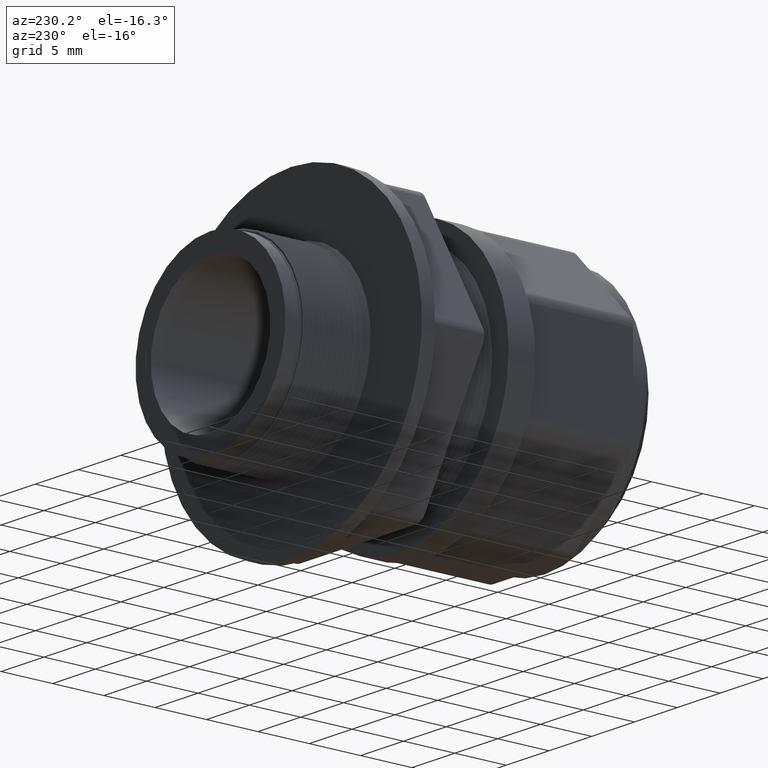
[diagram: clean part render]
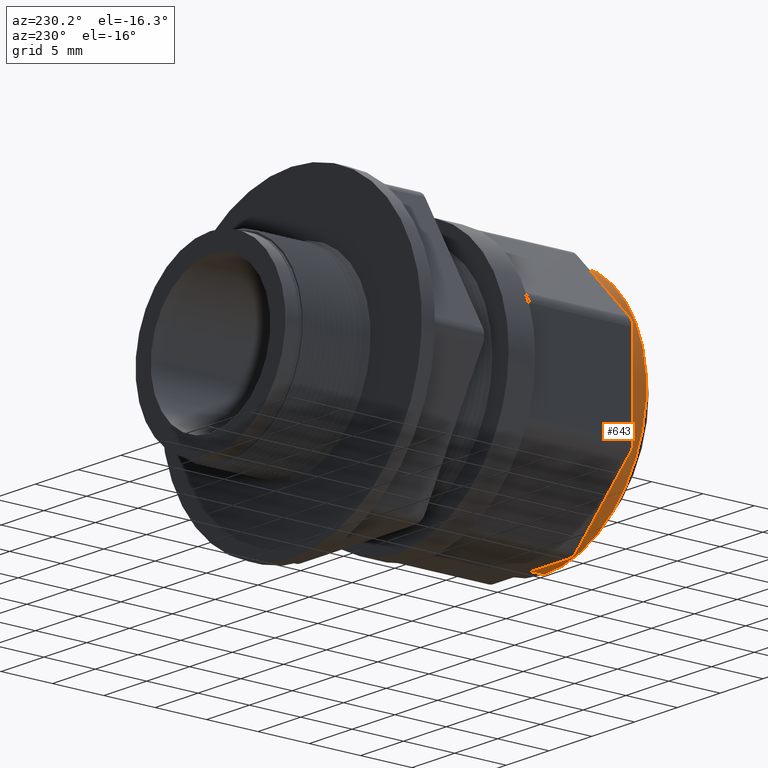
[diagram: same view with one face highlighted and labeled with its STEP entity id]
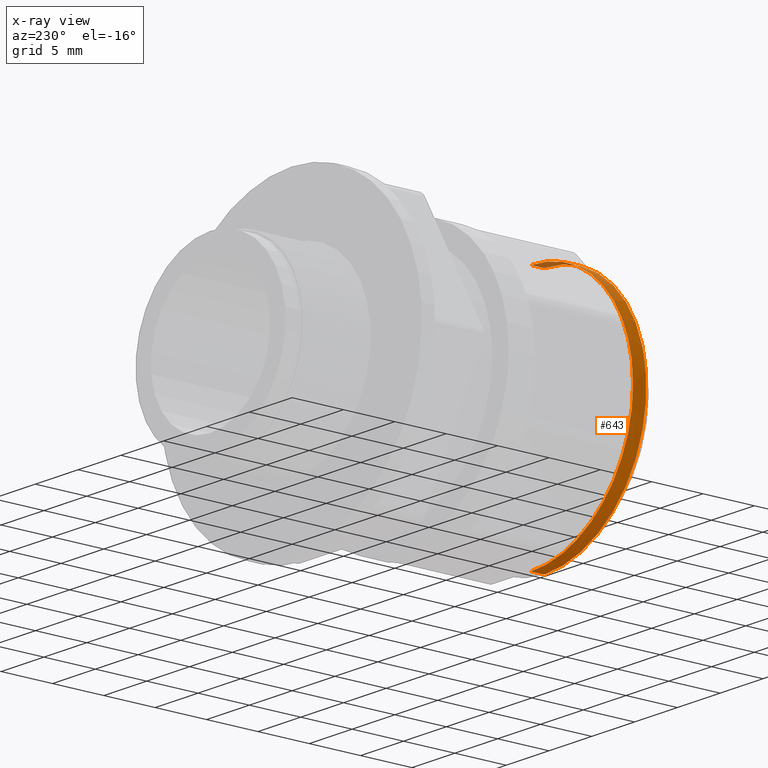
[diagram: x-ray of the same camera — body ghosted, the highlighted face saturated]
A machine part, auxiliary view. The second image highlights one B-rep face of the part: STEP entity #643.
The next image is the same camera in x-ray: the body ghosted, the highlighted face saturated — about 3% of this face is hidden behind the body in this view.
In plain terms, the highlighted cylindrical surface (partial cylindrical patch) has radius 11.938 mm, axis along (0, 1, 0).
Its self-contained STEP definition (entity closure, byte-faithful):
#464 = EDGE_CURVE ( 'NONE', #1104, #473, #2823, .T. ) ;
#473 = VERTEX_POINT ( 'NONE', #2843 ) ;
#576 = EDGE_CURVE ( 'NONE', #1101, #1109, #3183, .T. ) ;
#626 = EDGE_CURVE ( 'NONE', #1006, #1141, #3380, .T. ) ;
#629 = ORIENTED_EDGE ( 'NONE', *, *, #959, .F. ) ;
#631 = ORIENTED_EDGE ( 'NONE', *, *, #464, .F. ) ;
#632 = ORIENTED_EDGE ( 'NONE', *, *, #1161, .T. ) ;
#633 = ORIENTED_EDGE ( 'NONE', *, *, #626, .F. ) ;
#634 = ORIENTED_EDGE ( 'NONE', *, *, #997, .F. ) ;
#636 = ORIENTED_EDGE ( 'NONE', *, *, #1103, .F. ) ;
#637 = ORIENTED_EDGE ( 'NONE', *, *, #576, .T. ) ;
#640 = EDGE_LOOP ( 'NONE', ( #636, #637, #632, #633, #634, #629, #631 ) ) ;
#643 = ADVANCED_FACE ( 'NONE', ( #3401 ), #3436, .T. ) ;
#959 = EDGE_CURVE ( 'NONE', #473, #1021, #4690, .T. ) ;
#997 = EDGE_CURVE ( 'NONE', #1021, #1006, #4803, .T. ) ;
#1006 = VERTEX_POINT ( 'NONE', #4825 ) ;
#1021 = VERTEX_POINT ( 'NONE', #4877 ) ;
#1101 = VERTEX_POINT ( 'NONE', #5125 ) ;
#1103 = EDGE_CURVE ( 'NONE', #1101, #1104, #5177, .T. ) ;
#1104 = VERTEX_POINT ( 'NONE', #5173 ) ;
#1109 = VERTEX_POINT ( 'NONE', #5202 ) ;
#1141 = VERTEX_POINT ( 'NONE', #5274 ) ;
#1161 = EDGE_CURVE ( 'NONE', #1109, #1141, #5344, .T. ) ;
#2819 = DIRECTION ( 'NONE',  ( 0.0000000000000000000, 0.0000000000000000000, 1.000000000000000000 ) ) ;
#2820 = DIRECTION ( 'NONE',  ( 0.0000000000000000000, 1.000000000000000000, 0.0000000000000000000 ) ) ;
#2821 = CARTESIAN_POINT ( 'NONE',  ( 0.0000000000000000000, 0.1020000000000001700, 0.0000000000000000000 ) ) ;
#2822 = AXIS2_PLACEMENT_3D ( 'NONE', #2821, #2820, #2819 ) ;
#2823 = CIRCLE ( 'NONE', #2822, 0.4699999999999997500 ) ;
#2843 = CARTESIAN_POINT ( 'NONE',  ( -0.3323401871576771600, 0.1020000000000001700, -0.3323401871576773200 ) ) ;
#3179 = DIRECTION ( 'NONE',  ( 0.0000000000000000000, 0.0000000000000000000, 1.000000000000000000 ) ) ;
#3180 = DIRECTION ( 'NONE',  ( 0.0000000000000000000, 1.000000000000000000, 0.0000000000000000000 ) ) ;
#3181 = CARTESIAN_POINT ( 'NONE',  ( 0.0000000000000000000, 0.05100000000000008700, 0.0000000000000000000 ) ) ;
#3182 = AXIS2_PLACEMENT_3D ( 'NONE', #3181, #3180, #3179 ) ;
#3183 = CIRCLE ( 'NONE', #3182, 0.4699999999999997500 ) ;
#3376 = DIRECTION ( 'NONE',  ( 0.0000000000000000000, 0.0000000000000000000, 1.000000000000000000 ) ) ;
#3377 = DIRECTION ( 'NONE',  ( 0.0000000000000000000, 1.000000000000000000, 0.0000000000000000000 ) ) ;
#3378 = CARTESIAN_POINT ( 'NONE',  ( 0.0000000000000000000, 0.1020000000000001700, 0.0000000000000000000 ) ) ;
#3379 = AXIS2_PLACEMENT_3D ( 'NONE', #3378, #3377, #3376 ) ;
#3380 = CIRCLE ( 'NONE', #3379, 0.4699999999999997500 ) ;
#3401 = FACE_OUTER_BOUND ( 'NONE', #640, .T. ) ;
#3433 = DIRECTION ( 'NONE',  ( 0.0000000000000000000, 0.0000000000000000000, 1.000000000000000000 ) ) ;
#3434 = DIRECTION ( 'NONE',  ( 0.0000000000000000000, 1.000000000000000000, 0.0000000000000000000 ) ) ;
#3435 = AXIS2_PLACEMENT_3D ( 'NONE', #3438, #3434, #3433 ) ;
#3436 = CYLINDRICAL_SURFACE ( 'NONE', #3435, 0.4699999999999997500 ) ;
#3438 = CARTESIAN_POINT ( 'NONE',  ( 0.0000000000000000000, 2.259507931487918500, 0.0000000000000000000 ) ) ;
#4686 = DIRECTION ( 'NONE',  ( 0.0000000000000000000, 0.0000000000000000000, 1.000000000000000000 ) ) ;
#4687 = DIRECTION ( 'NONE',  ( 0.0000000000000000000, 1.000000000000000000, 0.0000000000000000000 ) ) ;
#4688 = CARTESIAN_POINT ( 'NONE',  ( 0.0000000000000000000, 0.1020000000000001700, 0.0000000000000000000 ) ) ;
#4689 = AXIS2_PLACEMENT_3D ( 'NONE', #4688, #4687, #4686 ) ;
#4690 = CIRCLE ( 'NONE', #4689, 0.4699999999999997500 ) ;
#4799 = DIRECTION ( 'NONE',  ( 0.0000000000000000000, 0.0000000000000000000, 1.000000000000000000 ) ) ;
#4800 = DIRECTION ( 'NONE',  ( 0.0000000000000000000, 1.000000000000000000, 0.0000000000000000000 ) ) ;
#4801 = CARTESIAN_POINT ( 'NONE',  ( 0.0000000000000000000, 0.1020000000000001700, 0.0000000000000000000 ) ) ;
#4802 = AXIS2_PLACEMENT_3D ( 'NONE', #4801, #4800, #4799 ) ;
#4803 = CIRCLE ( 'NONE', #4802, 0.4699999999999997500 ) ;
#4825 = CARTESIAN_POINT ( 'NONE',  ( -0.3323401871576772700, 0.1020000000000001700, 0.3323401871576770500 ) ) ;
#4877 = CARTESIAN_POINT ( 'NONE',  ( -0.4699999999999998600, 0.1020000000000001700, -8.244080595807493900E-017 ) ) ;
#5125 = CARTESIAN_POINT ( 'NONE',  ( 5.755839955992557200E-017, 0.05100000000000008700, -0.4699999999999997500 ) ) ;
#5173 = CARTESIAN_POINT ( 'NONE',  ( 8.244080595807493900E-017, 0.1020000000000001700, -0.4699999999999999200 ) ) ;
#5174 = DIRECTION ( 'NONE',  ( 0.0000000000000000000, 1.000000000000000000, 0.0000000000000000000 ) ) ;
#5175 = VECTOR ( 'NONE', #5174, 39.37007874015748100 ) ;
#5176 = CARTESIAN_POINT ( 'NONE',  ( 5.755839955992557200E-017, 2.259507931487918500, -0.4699999999999997500 ) ) ;
#5177 = LINE ( 'NONE', #5176, #5175 ) ;
#5202 = CARTESIAN_POINT ( 'NONE',  ( 0.0000000000000000000, 0.05100000000000008700, 0.4699999999999997500 ) ) ;
#5274 = CARTESIAN_POINT ( 'NONE',  ( -8.244080595807491500E-017, 0.1020000000000001700, 0.4699999999999998600 ) ) ;
#5341 = DIRECTION ( 'NONE',  ( 0.0000000000000000000, 1.000000000000000000, 0.0000000000000000000 ) ) ;
#5342 = VECTOR ( 'NONE', #5341, 39.37007874015748100 ) ;
#5343 = CARTESIAN_POINT ( 'NONE',  ( 0.0000000000000000000, 2.259507931487918500, 0.4699999999999997500 ) ) ;
#5344 = LINE ( 'NONE', #5343, #5342 ) ;